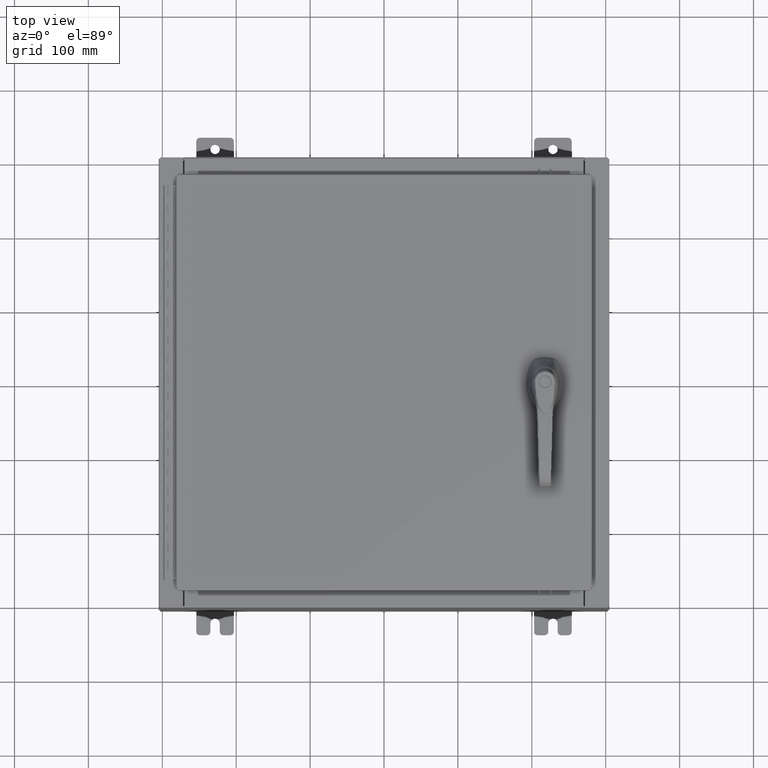
[diagram: clean part render]
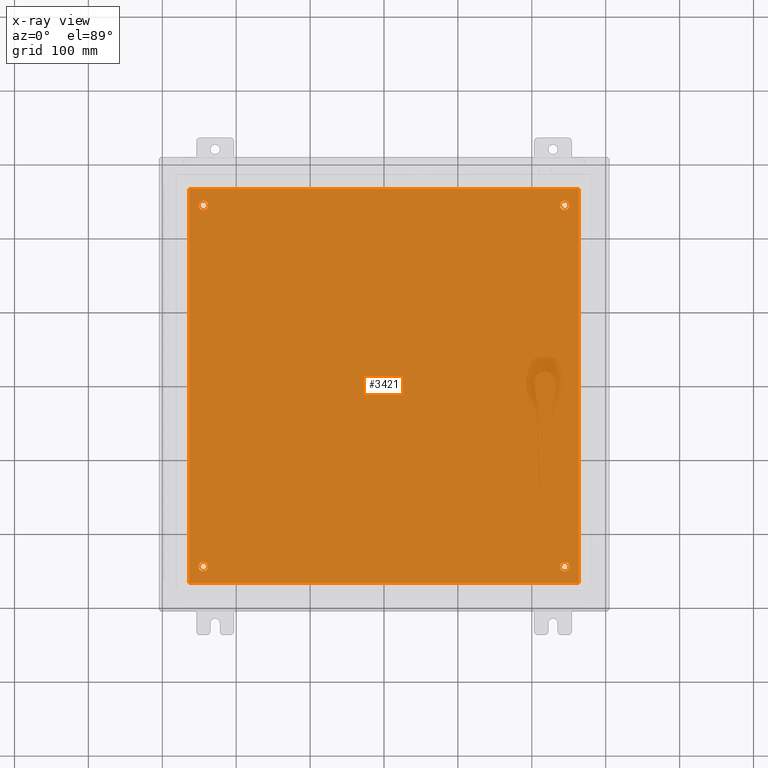
[diagram: x-ray — body ghosted, one internal face saturated and labeled with its STEP entity id]
A machine part, top view, then the same camera in x-ray: the body is ghosted and one INTERNAL B-rep face — a face not visible from any outside direction — is saturated and labeled: STEP entity #3421.
In plain terms, the highlighted planar face has unit normal (0, 0, -1).
Its self-contained STEP definition (entity closure, byte-faithful):
#762 = AXIS2_PLACEMENT_3D ( 'NONE', #100883, #49029, #109613 ) ;
#2587 = CARTESIAN_POINT ( 'NONE',  ( 10.38300000000000100, -10.50000000000000200, -0.1040000000000009100 ) ) ;
#2960 = DIRECTION ( 'NONE',  ( 0.0000000000000000000, 1.000000000000000000, 0.0000000000000000000 ) ) ;
#3421 = ADVANCED_FACE ( 'NONE', ( #15976, #105461, #82438, #59403, #36380 ), #4584, .T. ) ;
#4584 = PLANE ( 'NONE',  #12597 ) ;
#5335 = EDGE_LOOP ( 'NONE', ( #26755, #52909, #30823, #15990 ) ) ;
#5485 = ORIENTED_EDGE ( 'NONE', *, *, #86374, .T. ) ;
#5604 = CARTESIAN_POINT ( 'NONE',  ( 9.625000000000005300, -9.625000000000001800, -0.1039999999999999800 ) ) ;
#6246 = VECTOR ( 'NONE', #21979, 39.37007874015748100 ) ;
#6755 = VERTEX_POINT ( 'NONE', #112204 ) ;
#7535 = DIRECTION ( 'NONE',  ( -0.0000000000000000000, -0.0000000000000000000, 1.000000000000000000 ) ) ;
#10050 = AXIS2_PLACEMENT_3D ( 'NONE', #5604, #66253, #14276 ) ;
#10087 = CARTESIAN_POINT ( 'NONE',  ( 9.875000000000003600, -9.625000000000001800, -0.1039999999999999800 ) ) ;
#12597 = AXIS2_PLACEMENT_3D ( 'NONE', #73586, #30753, #91333 ) ;
#12683 = ORIENTED_EDGE ( 'NONE', *, *, #66979, .T. ) ;
#14276 = DIRECTION ( 'NONE',  ( -1.000000000000000000, 0.0000000000000000000, 0.0000000000000000000 ) ) ;
#15976 = FACE_BOUND ( 'NONE', #103432, .T. ) ;
#15990 = ORIENTED_EDGE ( 'NONE', *, *, #84963, .F. ) ;
#17969 = VECTOR ( 'NONE', #2960, 39.37007874015748100 ) ;
#19474 = VERTEX_POINT ( 'NONE', #100703 ) ;
#21004 = VERTEX_POINT ( 'NONE', #68290 ) ;
#21979 = DIRECTION ( 'NONE',  ( 0.0000000000000000000, -1.000000000000000000, 0.0000000000000000000 ) ) ;
#23624 = CIRCLE ( 'NONE', #37910, 0.2499999999999976100 ) ;
#25284 = CIRCLE ( 'NONE', #29720, 0.2499999999999987000 ) ;
#26755 = ORIENTED_EDGE ( 'NONE', *, *, #54702, .F. ) ;
#27073 = DIRECTION ( 'NONE',  ( -0.0000000000000000000, -0.0000000000000000000, 1.000000000000000000 ) ) ;
#27219 = ORIENTED_EDGE ( 'NONE', *, *, #31310, .T. ) ;
#27264 = VERTEX_POINT ( 'NONE', #33663 ) ;
#29312 = LINE ( 'NONE', #73933, #6246 ) ;
#29720 = AXIS2_PLACEMENT_3D ( 'NONE', #88488, #36621, #97153 ) ;
#30753 = DIRECTION ( 'NONE',  ( 0.0000000000000000000, 0.0000000000000000000, -1.000000000000000000 ) ) ;
#30823 = ORIENTED_EDGE ( 'NONE', *, *, #86738, .F. ) ;
#30927 = CIRCLE ( 'NONE', #105769, 0.2499999999999976100 ) ;
#31310 = EDGE_CURVE ( 'NONE', #39513, #72182, #44572, .T. ) ;
#32493 = ORIENTED_EDGE ( 'NONE', *, *, #62297, .T. ) ;
#33663 = CARTESIAN_POINT ( 'NONE',  ( 9.875000000000003600, 9.625000000000001800, -0.1039999999999999800 ) ) ;
#33967 = EDGE_CURVE ( 'NONE', #74880, #65732, #29312, .T. ) ;
#36380 = FACE_OUTER_BOUND ( 'NONE', #5335, .T. ) ;
#36621 = DIRECTION ( 'NONE',  ( -0.0000000000000000000, -0.0000000000000000000, 1.000000000000000000 ) ) ;
#37823 = VERTEX_POINT ( 'NONE', #60049 ) ;
#37910 = AXIS2_PLACEMENT_3D ( 'NONE', #47469, #108058, #56194 ) ;
#38010 = DIRECTION ( 'NONE',  ( -0.0000000000000000000, -0.0000000000000000000, 1.000000000000000000 ) ) ;
#38084 = VECTOR ( 'NONE', #106030, 39.37007874015748100 ) ;
#38280 = CARTESIAN_POINT ( 'NONE',  ( -10.50000000000000200, -10.50000000000000000, -0.1039999999999999800 ) ) ;
#39088 = CIRCLE ( 'NONE', #47705, 0.2499999999999987000 ) ;
#39513 = VERTEX_POINT ( 'NONE', #65306 ) ;
#42426 = ORIENTED_EDGE ( 'NONE', *, *, #95459, .T. ) ;
#44572 = CIRCLE ( 'NONE', #10050, 0.2499999999999976100 ) ;
#44855 = CARTESIAN_POINT ( 'NONE',  ( 10.38299999999999900, -10.50000000000000000, -0.1039999999999999800 ) ) ;
#45775 = CARTESIAN_POINT ( 'NONE',  ( -9.625000000000005300, -9.625000000000001800, -0.1039999999999999800 ) ) ;
#46964 = DIRECTION ( 'NONE',  ( 1.000000000000000000, 0.0000000000000000000, 0.0000000000000000000 ) ) ;
#47469 = CARTESIAN_POINT ( 'NONE',  ( 9.625000000000005300, 9.625000000000001800, -0.1039999999999999800 ) ) ;
#47705 = AXIS2_PLACEMENT_3D ( 'NONE', #79029, #27073, #87704 ) ;
#49029 = DIRECTION ( 'NONE',  ( -0.0000000000000000000, -0.0000000000000000000, 1.000000000000000000 ) ) ;
#52909 = ORIENTED_EDGE ( 'NONE', *, *, #33967, .F. ) ;
#53533 = LINE ( 'NONE', #38280, #96866 ) ;
#54505 = DIRECTION ( 'NONE',  ( -1.000000000000000000, 0.0000000000000000000, 0.0000000000000000000 ) ) ;
#54702 = EDGE_CURVE ( 'NONE', #65732, #61460, #53533, .T. ) ;
#56194 = DIRECTION ( 'NONE',  ( -1.000000000000000000, 0.0000000000000000000, 0.0000000000000000000 ) ) ;
#57561 = CIRCLE ( 'NONE', #762, 0.2499999999999987000 ) ;
#57643 = AXIS2_PLACEMENT_3D ( 'NONE', #59471, #7535, #68219 ) ;
#58602 = CARTESIAN_POINT ( 'NONE',  ( -9.875000000000005300, -9.625000000000001800, -0.1039999999999999800 ) ) ;
#59403 = FACE_BOUND ( 'NONE', #83542, .T. ) ;
#59444 = CARTESIAN_POINT ( 'NONE',  ( -10.38299999999999900, 10.50000000000000400, -0.1040000000000031300 ) ) ;
#59471 = CARTESIAN_POINT ( 'NONE',  ( 9.625000000000005300, -9.625000000000001800, -0.1039999999999999800 ) ) ;
#60049 = CARTESIAN_POINT ( 'NONE',  ( 10.38300000000000100, 10.50000000000000200, -0.1039999999999999800 ) ) ;
#61145 = LINE ( 'NONE', #104931, #38084 ) ;
#61460 = VERTEX_POINT ( 'NONE', #44855 ) ;
#62297 = EDGE_CURVE ( 'NONE', #6755, #21004, #39088, .T. ) ;
#62353 = EDGE_CURVE ( 'NONE', #19474, #27264, #30927, .T. ) ;
#64427 = AXIS2_PLACEMENT_3D ( 'NONE', #45775, #106362, #54505 ) ;
#65306 = CARTESIAN_POINT ( 'NONE',  ( 9.375000000000007100, -9.625000000000001800, -0.1039999999999999800 ) ) ;
#65732 = VERTEX_POINT ( 'NONE', #85444 ) ;
#66253 = DIRECTION ( 'NONE',  ( -0.0000000000000000000, -0.0000000000000000000, 1.000000000000000000 ) ) ;
#66979 = EDGE_CURVE ( 'NONE', #21004, #6755, #57561, .T. ) ;
#68219 = DIRECTION ( 'NONE',  ( -1.000000000000000000, 0.0000000000000000000, 0.0000000000000000000 ) ) ;
#68290 = CARTESIAN_POINT ( 'NONE',  ( -9.875000000000005300, 9.625000000000001800, -0.1039999999999999800 ) ) ;
#71127 = VERTEX_POINT ( 'NONE', #58602 ) ;
#71580 = ORIENTED_EDGE ( 'NONE', *, *, #62353, .T. ) ;
#72182 = VERTEX_POINT ( 'NONE', #10087 ) ;
#72692 = EDGE_LOOP ( 'NONE', ( #96680, #71580 ) ) ;
#73552 = CIRCLE ( 'NONE', #64427, 0.2499999999999987000 ) ;
#73586 = CARTESIAN_POINT ( 'NONE',  ( 0.0000000000000000000, 0.0000000000000000000, -0.1039999999999999800 ) ) ;
#73933 = CARTESIAN_POINT ( 'NONE',  ( -10.38299999999999900, 10.50000000000000400, -0.1040000000000031300 ) ) ;
#74880 = VERTEX_POINT ( 'NONE', #59444 ) ;
#79029 = CARTESIAN_POINT ( 'NONE',  ( -9.625000000000005300, 9.625000000000001800, -0.1039999999999999800 ) ) ;
#82438 = FACE_BOUND ( 'NONE', #72692, .T. ) ;
#83018 = EDGE_CURVE ( 'NONE', #27264, #19474, #23624, .T. ) ;
#83542 = EDGE_LOOP ( 'NONE', ( #32493, #12683 ) ) ;
#84963 = EDGE_CURVE ( 'NONE', #61460, #37823, #107389, .T. ) ;
#85444 = CARTESIAN_POINT ( 'NONE',  ( -10.38299999999999900, -10.50000000000000000, -0.1040000000000031300 ) ) ;
#86374 = EDGE_CURVE ( 'NONE', #72182, #39513, #108586, .T. ) ;
#86646 = CARTESIAN_POINT ( 'NONE',  ( -9.375000000000005300, -9.625000000000001800, -0.1039999999999999800 ) ) ;
#86738 = EDGE_CURVE ( 'NONE', #37823, #74880, #61145, .T. ) ;
#87704 = DIRECTION ( 'NONE',  ( -1.000000000000000000, 0.0000000000000000000, 0.0000000000000000000 ) ) ;
#88488 = CARTESIAN_POINT ( 'NONE',  ( -9.625000000000005300, -9.625000000000001800, -0.1039999999999999800 ) ) ;
#89885 = CARTESIAN_POINT ( 'NONE',  ( 9.625000000000005300, 9.625000000000001800, -0.1039999999999999800 ) ) ;
#91333 = DIRECTION ( 'NONE',  ( -1.000000000000000000, 0.0000000000000000000, -0.0000000000000000000 ) ) ;
#95459 = EDGE_CURVE ( 'NONE', #108307, #71127, #25284, .T. ) ;
#96604 = EDGE_LOOP ( 'NONE', ( #5485, #27219 ) ) ;
#96680 = ORIENTED_EDGE ( 'NONE', *, *, #83018, .T. ) ;
#96866 = VECTOR ( 'NONE', #46964, 39.37007874015748100 ) ;
#97153 = DIRECTION ( 'NONE',  ( -1.000000000000000000, 0.0000000000000000000, 0.0000000000000000000 ) ) ;
#98549 = DIRECTION ( 'NONE',  ( -1.000000000000000000, 0.0000000000000000000, 0.0000000000000000000 ) ) ;
#100703 = CARTESIAN_POINT ( 'NONE',  ( 9.375000000000007100, 9.625000000000001800, -0.1039999999999999800 ) ) ;
#100883 = CARTESIAN_POINT ( 'NONE',  ( -9.625000000000005300, 9.625000000000001800, -0.1039999999999999800 ) ) ;
#100961 = ORIENTED_EDGE ( 'NONE', *, *, #107762, .T. ) ;
#103432 = EDGE_LOOP ( 'NONE', ( #42426, #100961 ) ) ;
#104931 = CARTESIAN_POINT ( 'NONE',  ( -10.50000000000000000, 10.50000000000000200, -0.1039999999999999800 ) ) ;
#105461 = FACE_BOUND ( 'NONE', #96604, .T. ) ;
#105769 = AXIS2_PLACEMENT_3D ( 'NONE', #89885, #38010, #98549 ) ;
#106030 = DIRECTION ( 'NONE',  ( -1.000000000000000000, -0.0000000000000000000, -0.0000000000000000000 ) ) ;
#106362 = DIRECTION ( 'NONE',  ( -0.0000000000000000000, -0.0000000000000000000, 1.000000000000000000 ) ) ;
#107389 = LINE ( 'NONE', #2587, #17969 ) ;
#107762 = EDGE_CURVE ( 'NONE', #71127, #108307, #73552, .T. ) ;
#108058 = DIRECTION ( 'NONE',  ( -0.0000000000000000000, -0.0000000000000000000, 1.000000000000000000 ) ) ;
#108307 = VERTEX_POINT ( 'NONE', #86646 ) ;
#108586 = CIRCLE ( 'NONE', #57643, 0.2499999999999976100 ) ;
#109613 = DIRECTION ( 'NONE',  ( -1.000000000000000000, 0.0000000000000000000, 0.0000000000000000000 ) ) ;
#112204 = CARTESIAN_POINT ( 'NONE',  ( -9.375000000000005300, 9.625000000000001800, -0.1039999999999999800 ) ) ;